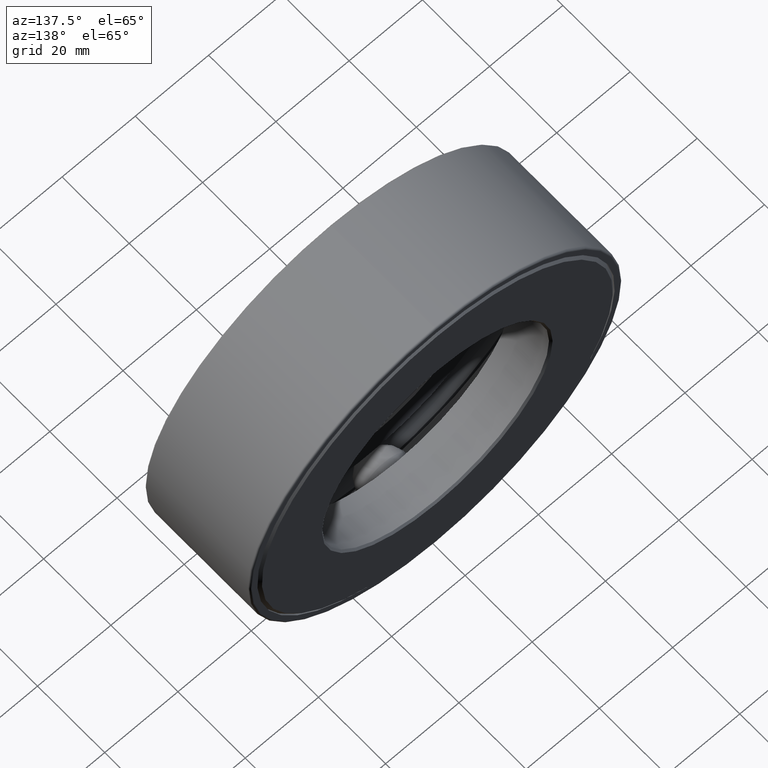
[diagram: clean part render]
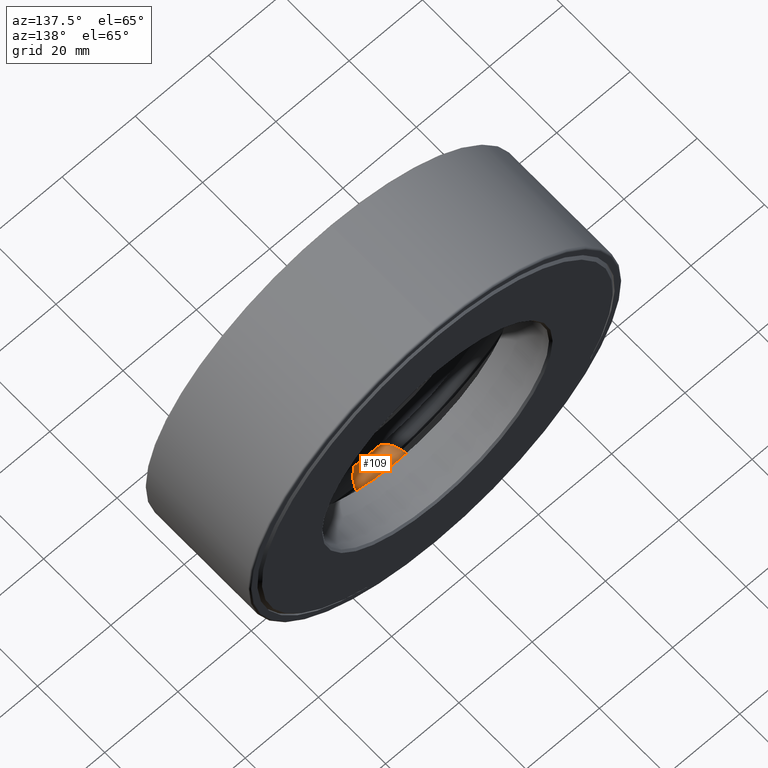
[diagram: same view with one face highlighted and labeled with its STEP entity id]
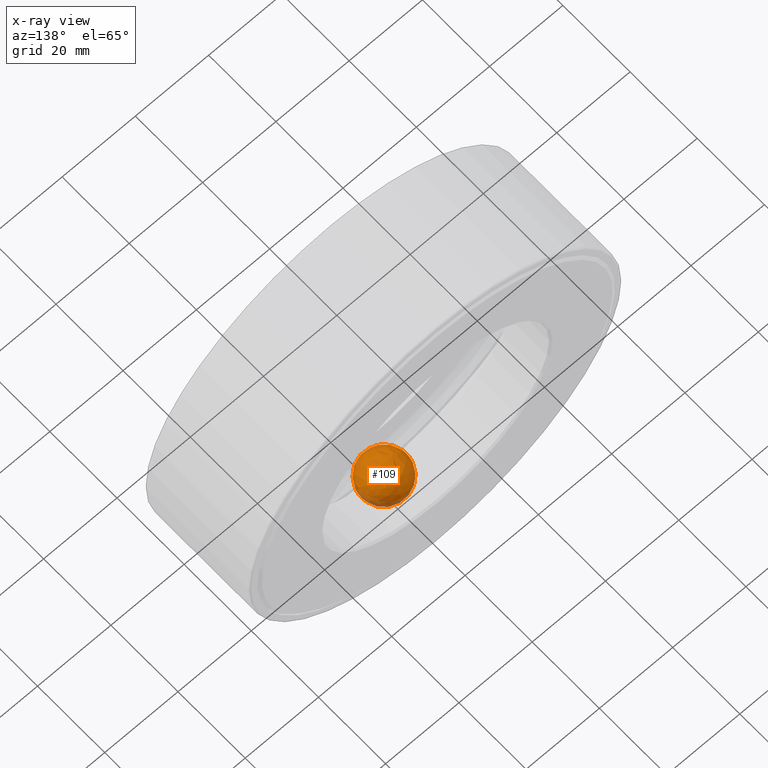
[diagram: x-ray of the same camera — body ghosted, the highlighted face saturated]
A machine part, auxiliary view. The second image highlights one B-rep face of the part: STEP entity #109.
The next image is the same camera in x-ray: the body ghosted, the highlighted face saturated — about 9% of this face is hidden behind the body in this view.
In plain terms, the highlighted spherical surface has radius 6.35 mm.
Its self-contained STEP definition (entity closure, byte-faithful):
#33 = AXIS2_PLACEMENT_3D ( 'NONE', #334, #279, #516 ) ;
#109 = ADVANCED_FACE ( 'NONE', ( ), #145, .T. ) ;
#145 = SPHERICAL_SURFACE ( 'NONE', #33, 0.2500000000000000600 ) ;
#279 = DIRECTION ( 'NONE',  ( 1.000000000000000000, 0.0000000000000000000, -1.047444401652940000E-014 ) ) ;
#334 = CARTESIAN_POINT ( 'NONE',  ( -1.802651815244709700E-014, 0.6249999999999998900, -1.721000000000000100 ) ) ;
#516 = DIRECTION ( 'NONE',  ( 1.047444401652940000E-014, 0.0000000000000000000, 1.000000000000000000 ) ) ;